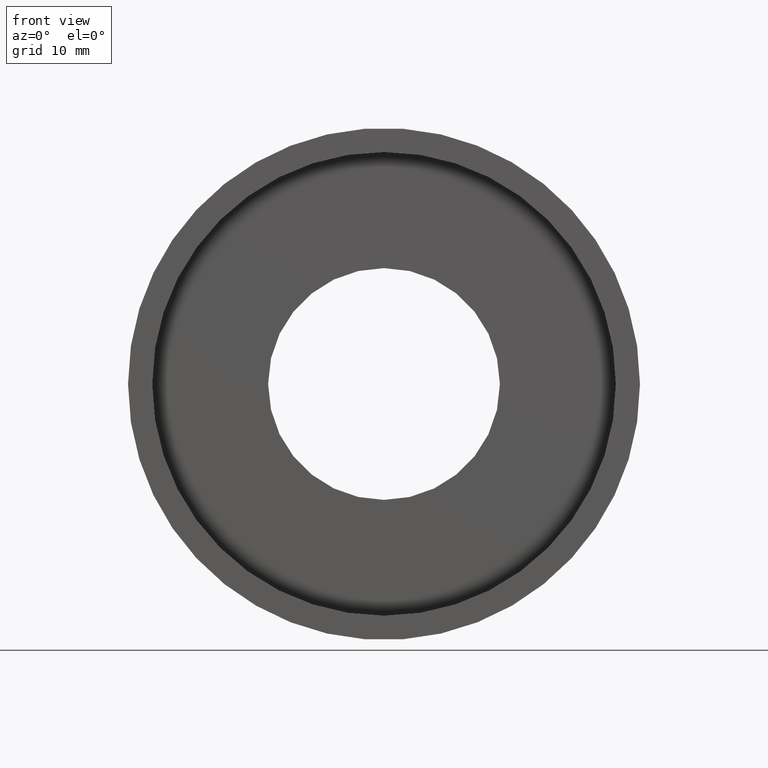
[diagram: clean part render]
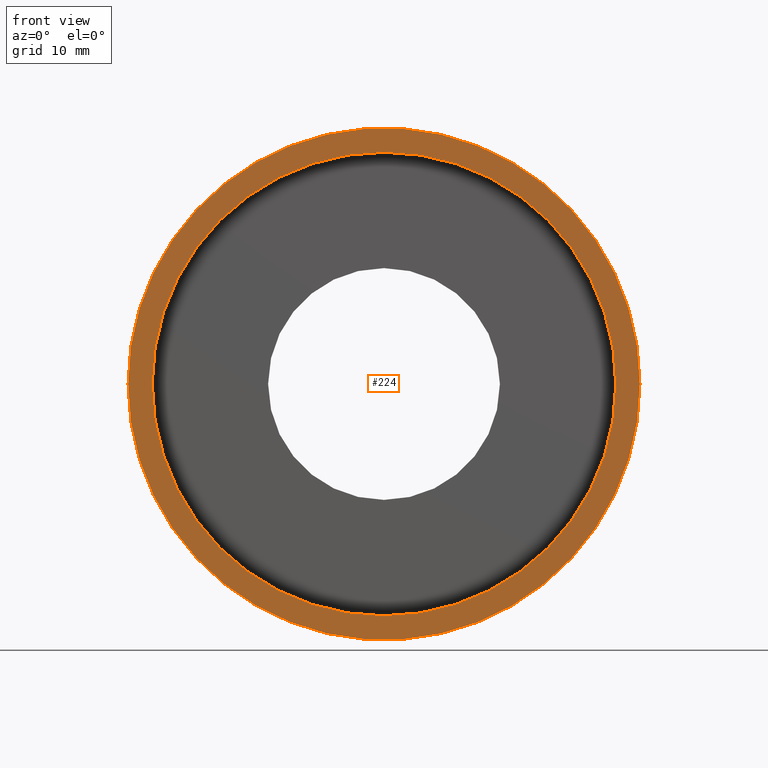
[diagram: same view with one face highlighted and labeled with its STEP entity id]
A machine part, front view. The second image highlights one B-rep face of the part: STEP entity #224.
In plain terms, the highlighted planar face has unit normal (-0, 1, 0).
Its self-contained STEP definition (entity closure, byte-faithful):
#8 = DIRECTION ( 'NONE',  ( -1.224646799147351000E-016, 1.000000000000000000, -0.0000000000000000000 ) ) ;
#18 = DIRECTION ( 'NONE',  ( -1.000000000000000000, -1.224646799147351000E-016, 0.0000000000000000000 ) ) ;
#24 = EDGE_LOOP ( 'NONE', ( #241, #401 ) ) ;
#28 = DIRECTION ( 'NONE',  ( -1.000000000000000000, -1.224646799147351000E-016, 0.0000000000000000000 ) ) ;
#38 = CARTESIAN_POINT ( 'NONE',  ( -25.39999999999999100, -6.580049821787884700E-015, 0.0000000000000000000 ) ) ;
#65 = CARTESIAN_POINT ( 'NONE',  ( 25.39999999999999900, -3.588440821193433400E-016, 3.110602869834276900E-015 ) ) ;
#76 = VERTEX_POINT ( 'NONE', #38 ) ;
#77 = CIRCLE ( 'NONE', #227, 25.39999999999999500 ) ;
#86 = EDGE_CURVE ( 'NONE', #190, #489, #410, .T. ) ;
#116 = AXIS2_PLACEMENT_3D ( 'NONE', #118, #8, #488 ) ;
#118 = CARTESIAN_POINT ( 'NONE',  ( 2.067940818438636500E-015, -3.469446951953614200E-015, 0.0000000000000000000 ) ) ;
#132 = PLANE ( 'NONE',  #268 ) ;
#182 = ORIENTED_EDGE ( 'NONE', *, *, #86, .T. ) ;
#186 = EDGE_CURVE ( 'NONE', #76, #610, #208, .T. ) ;
#187 = FACE_BOUND ( 'NONE', #321, .T. ) ;
#190 = VERTEX_POINT ( 'NONE', #203 ) ;
#203 = CARTESIAN_POINT ( 'NONE',  ( 23.00000000000000000, -6.527593139147072600E-016, 2.816687638038912400E-015 ) ) ;
#208 = CIRCLE ( 'NONE', #511, 25.39999999999999500 ) ;
#224 = ADVANCED_FACE ( 'NONE', ( #444, #187 ), #132, .F. ) ;
#227 = AXIS2_PLACEMENT_3D ( 'NONE', #591, #346, #18 ) ;
#241 = ORIENTED_EDGE ( 'NONE', *, *, #186, .F. ) ;
#261 = CARTESIAN_POINT ( 'NONE',  ( 25.39999999999999900, 4.336808689942015800E-016, 0.0000000000000000000 ) ) ;
#268 = AXIS2_PLACEMENT_3D ( 'NONE', #261, #600, #28 ) ;
#279 = DIRECTION ( 'NONE',  ( -1.000000000000000000, -1.224646799147351000E-016, 0.0000000000000000000 ) ) ;
#321 = EDGE_LOOP ( 'NONE', ( #531, #182 ) ) ;
#323 = CARTESIAN_POINT ( 'NONE',  ( 2.067940818438636500E-015, -3.469446951953614200E-015, 0.0000000000000000000 ) ) ;
#346 = DIRECTION ( 'NONE',  ( -1.224646799147351000E-016, 1.000000000000000000, -0.0000000000000000000 ) ) ;
#400 = CARTESIAN_POINT ( 'NONE',  ( 2.067940818438636500E-015, -3.469446951953614200E-015, 0.0000000000000000000 ) ) ;
#401 = ORIENTED_EDGE ( 'NONE', *, *, #484, .F. ) ;
#410 = CIRCLE ( 'NONE', #528, 22.99999999999999600 ) ;
#423 = DIRECTION ( 'NONE',  ( -1.224646799147351000E-016, 1.000000000000000000, -0.0000000000000000000 ) ) ;
#444 = FACE_OUTER_BOUND ( 'NONE', #24, .T. ) ;
#449 = CARTESIAN_POINT ( 'NONE',  ( -22.99999999999999300, -6.286134589992521000E-015, 0.0000000000000000000 ) ) ;
#484 = EDGE_CURVE ( 'NONE', #610, #76, #77, .T. ) ;
#488 = DIRECTION ( 'NONE',  ( -1.000000000000000000, -1.224646799147351000E-016, 0.0000000000000000000 ) ) ;
#489 = VERTEX_POINT ( 'NONE', #449 ) ;
#493 = DIRECTION ( 'NONE',  ( -1.224646799147351000E-016, 1.000000000000000000, -0.0000000000000000000 ) ) ;
#506 = DIRECTION ( 'NONE',  ( -1.000000000000000000, -1.224646799147351000E-016, 0.0000000000000000000 ) ) ;
#511 = AXIS2_PLACEMENT_3D ( 'NONE', #400, #493, #506 ) ;
#528 = AXIS2_PLACEMENT_3D ( 'NONE', #323, #423, #279 ) ;
#531 = ORIENTED_EDGE ( 'NONE', *, *, #620, .T. ) ;
#591 = CARTESIAN_POINT ( 'NONE',  ( 2.067940818438636500E-015, -3.469446951953614200E-015, 0.0000000000000000000 ) ) ;
#600 = DIRECTION ( 'NONE',  ( -1.224646799147351000E-016, 1.000000000000000000, 0.0000000000000000000 ) ) ;
#604 = CIRCLE ( 'NONE', #116, 22.99999999999999600 ) ;
#610 = VERTEX_POINT ( 'NONE', #65 ) ;
#620 = EDGE_CURVE ( 'NONE', #489, #190, #604, .T. ) ;